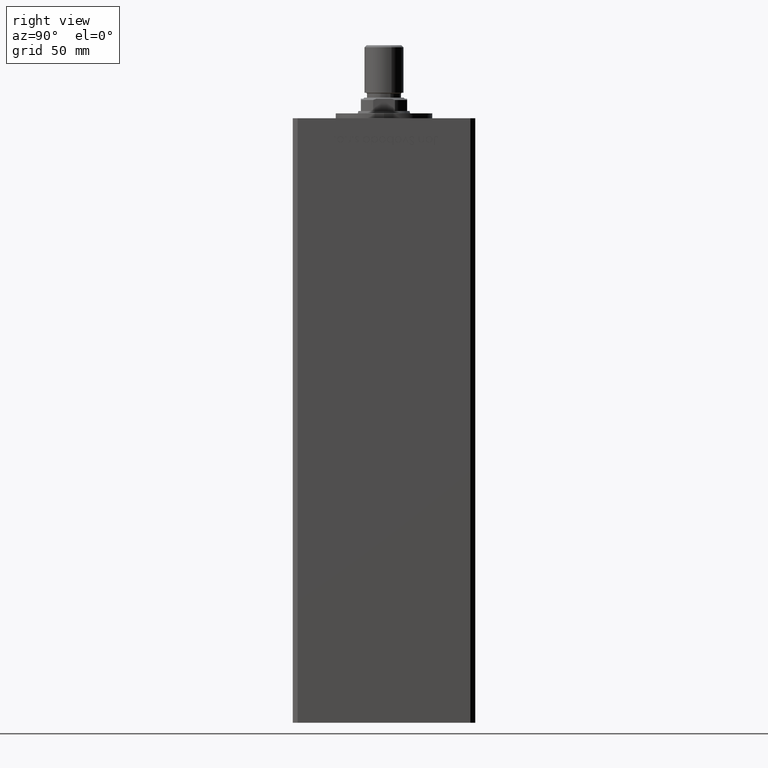
[diagram: clean part render]
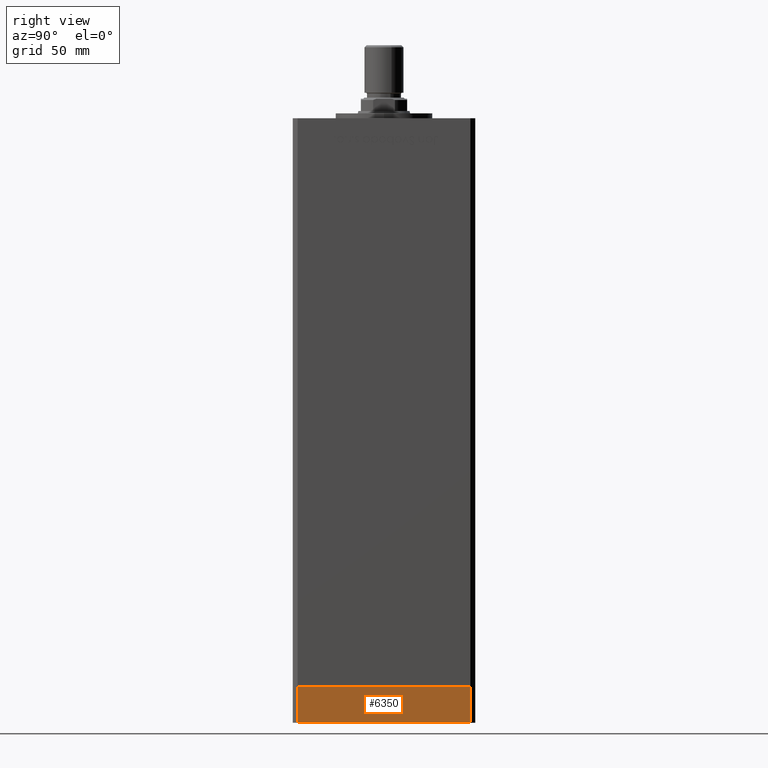
[diagram: same view with one face highlighted and labeled with its STEP entity id]
A machine part, right view. The second image highlights one B-rep face of the part: STEP entity #6350.
In plain terms, the highlighted planar face has unit normal (1, -0, 0).
Its self-contained STEP definition (entity closure, byte-faithful):
#207 = CARTESIAN_POINT ( 'NONE',  ( -42.50000000000000000, -35.50000000000000711, -15.00000000000000000 ) ) ;
#2731 = CARTESIAN_POINT ( 'NONE',  ( -42.50000000000000711, 35.49999999999997158, -15.00000000000000000 ) ) ;
#6350 = ADVANCED_FACE ( 'NONE', ( #39006 ), #18861, .T. ) ;
#7479 = EDGE_CURVE ( 'NONE', #37078, #39230, #42937, .T. ) ;
#7491 = ORIENTED_EDGE ( 'NONE', *, *, #21008, .F. ) ;
#7668 = CARTESIAN_POINT ( 'NONE',  ( -42.50000000000000711, 35.49999999999997158, -15.00000000000000000 ) ) ;
#9463 = EDGE_CURVE ( 'NONE', #39230, #44801, #9607, .T. ) ;
#9607 = LINE ( 'NONE', #13310, #24503 ) ;
#10202 = VECTOR ( 'NONE', #23040, 1000.000000000000000 ) ;
#11146 = EDGE_LOOP ( 'NONE', ( #7491, #27029, #48212, #33879 ) ) ;
#13310 = CARTESIAN_POINT ( 'NONE',  ( -42.50000000000000000, -35.50000000000000711, -15.00000000000000000 ) ) ;
#16332 = CARTESIAN_POINT ( 'NONE',  ( -42.50000000000000000, -35.50000000000000711, 0.000000000000000000 ) ) ;
#18861 = PLANE ( 'NONE',  #50791 ) ;
#20077 = DIRECTION ( 'NONE',  ( 9.773090005503140331E-17, -1.000000000000000000, 0.000000000000000000 ) ) ;
#21008 = EDGE_CURVE ( 'NONE', #50276, #44801, #33050, .T. ) ;
#23040 = DIRECTION ( 'NONE',  ( 9.773090005503140331E-17, -1.000000000000000000, 0.000000000000000000 ) ) ;
#24503 = VECTOR ( 'NONE', #25245, 1000.000000000000000 ) ;
#25245 = DIRECTION ( 'NONE',  ( 0.000000000000000000, 0.000000000000000000, 1.000000000000000000 ) ) ;
#26816 = DIRECTION ( 'NONE',  ( -1.000000000000000000, -9.773090005503140331E-17, 0.000000000000000000 ) ) ;
#27029 = ORIENTED_EDGE ( 'NONE', *, *, #41214, .F. ) ;
#27567 = CARTESIAN_POINT ( 'NONE',  ( -42.50000000000000711, 35.49999999999997158, -15.00000000000000000 ) ) ;
#33050 = LINE ( 'NONE', #44456, #36636 ) ;
#33879 = ORIENTED_EDGE ( 'NONE', *, *, #9463, .T. ) ;
#34592 = DIRECTION ( 'NONE',  ( 0.000000000000000000, 0.000000000000000000, 1.000000000000000000 ) ) ;
#36636 = VECTOR ( 'NONE', #20077, 1000.000000000000000 ) ;
#37078 = VERTEX_POINT ( 'NONE', #27567 ) ;
#39006 = FACE_OUTER_BOUND ( 'NONE', #11146, .T. ) ;
#39230 = VERTEX_POINT ( 'NONE', #207 ) ;
#41214 = EDGE_CURVE ( 'NONE', #37078, #50276, #48943, .T. ) ;
#42192 = CARTESIAN_POINT ( 'NONE',  ( -42.50000000000000711, 35.49999999999997158, 0.000000000000000000 ) ) ;
#42937 = LINE ( 'NONE', #7668, #10202 ) ;
#42981 = DIRECTION ( 'NONE',  ( 9.773090005503140331E-17, -1.000000000000000000, 0.000000000000000000 ) ) ;
#44456 = CARTESIAN_POINT ( 'NONE',  ( -42.50000000000000711, 35.49999999999997158, 0.000000000000000000 ) ) ;
#44801 = VERTEX_POINT ( 'NONE', #16332 ) ;
#48212 = ORIENTED_EDGE ( 'NONE', *, *, #7479, .T. ) ;
#48943 = LINE ( 'NONE', #49209, #51230 ) ;
#49209 = CARTESIAN_POINT ( 'NONE',  ( -42.50000000000000711, 35.49999999999997158, -15.00000000000000000 ) ) ;
#50276 = VERTEX_POINT ( 'NONE', #42192 ) ;
#50791 = AXIS2_PLACEMENT_3D ( 'NONE', #2731, #26816, #42981 ) ;
#51230 = VECTOR ( 'NONE', #34592, 1000.000000000000000 ) ;